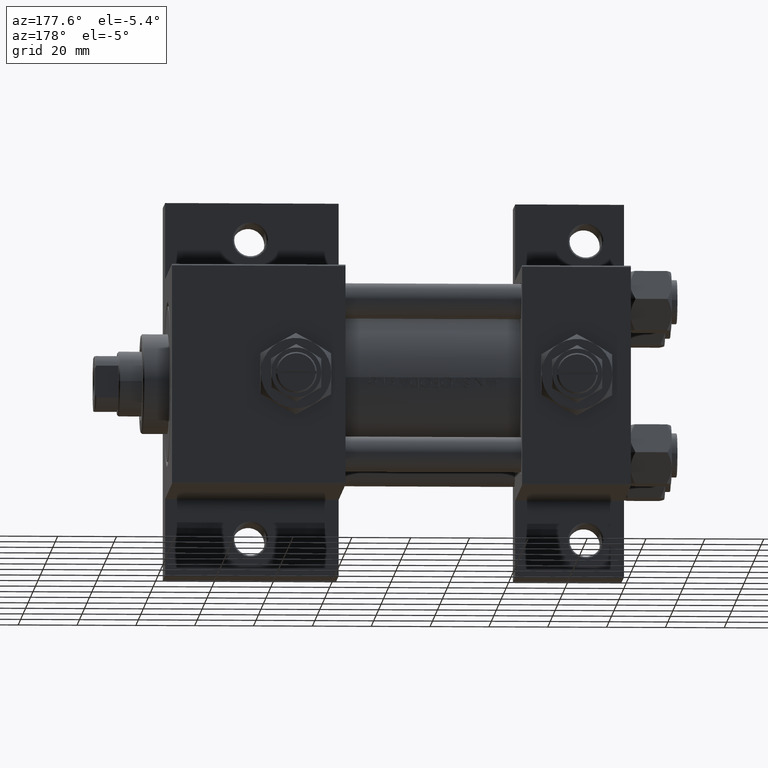
[diagram: clean part render]
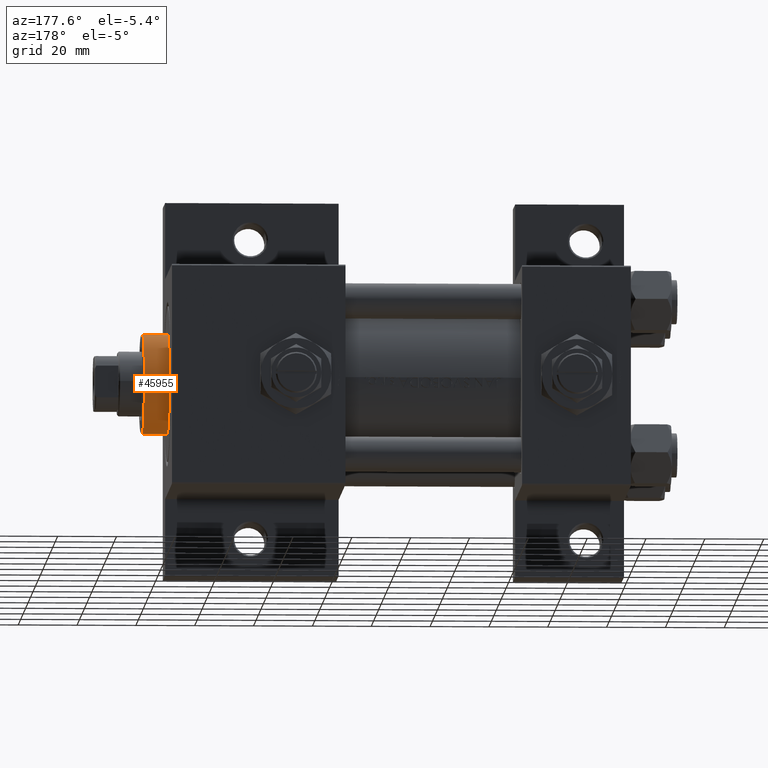
[diagram: same view with one face highlighted and labeled with its STEP entity id]
A machine part, auxiliary view. The second image highlights one B-rep face of the part: STEP entity #45955.
In plain terms, the highlighted cylindrical surface (partial cylindrical patch) has radius 17 mm, axis along (-1, -0, 0).
Its self-contained STEP definition (entity closure, byte-faithful):
#372 = CARTESIAN_POINT ( 'NONE',  ( -17.00000000000000000, 0.000000000000000000, 37.69999999999999574 ) ) ;
#807 = AXIS2_PLACEMENT_3D ( 'NONE', #36709, #43412, #20849 ) ;
#1851 = CARTESIAN_POINT ( 'NONE',  ( 17.00000000000000000, 2.081899558550500280E-15, 28.69999999999999929 ) ) ;
#2935 = VERTEX_POINT ( 'NONE', #26538 ) ;
#5365 = CYLINDRICAL_SURFACE ( 'NONE', #6507, 17.00000000000000000 ) ;
#6507 = AXIS2_PLACEMENT_3D ( 'NONE', #20958, #36089, #32364 ) ;
#7432 = EDGE_CURVE ( 'NONE', #2935, #21690, #22161, .T. ) ;
#8493 = AXIS2_PLACEMENT_3D ( 'NONE', #36771, #40962, #44206 ) ;
#14014 = FACE_OUTER_BOUND ( 'NONE', #33560, .T. ) ;
#18715 = DIRECTION ( 'NONE',  ( -0.000000000000000000, -0.000000000000000000, -1.000000000000000000 ) ) ;
#19251 = CARTESIAN_POINT ( 'NONE',  ( 17.00000000000000000, 2.081899558550500280E-15, 37.19999999999999574 ) ) ;
#19755 = VECTOR ( 'NONE', #18715, 1000.000000000000000 ) ;
#20849 = DIRECTION ( 'NONE',  ( 1.000000000000000000, 0.000000000000000000, 0.000000000000000000 ) ) ;
#20958 = CARTESIAN_POINT ( 'NONE',  ( 0.000000000000000000, 0.000000000000000000, 37.69999999999999574 ) ) ;
#21203 = CARTESIAN_POINT ( 'NONE',  ( -17.00000000000000000, 0.000000000000000000, 28.69999999999999929 ) ) ;
#21690 = VERTEX_POINT ( 'NONE', #19251 ) ;
#22161 = CIRCLE ( 'NONE', #807, 17.00000000000000000 ) ;
#22824 = VERTEX_POINT ( 'NONE', #1851 ) ;
#26061 = VECTOR ( 'NONE', #46453, 1000.000000000000000 ) ;
#26538 = CARTESIAN_POINT ( 'NONE',  ( -17.00000000000000000, 0.000000000000000000, 37.19999999999999574 ) ) ;
#29582 = ORIENTED_EDGE ( 'NONE', *, *, #7432, .T. ) ;
#30469 = EDGE_CURVE ( 'NONE', #22824, #35166, #39338, .T. ) ;
#31619 = ORIENTED_EDGE ( 'NONE', *, *, #35332, .F. ) ;
#32364 = DIRECTION ( 'NONE',  ( -1.000000000000000000, 0.000000000000000000, 0.000000000000000000 ) ) ;
#33560 = EDGE_LOOP ( 'NONE', ( #29582, #38121, #48618, #31619 ) ) ;
#34804 = LINE ( 'NONE', #372, #26061 ) ;
#35166 = VERTEX_POINT ( 'NONE', #21203 ) ;
#35332 = EDGE_CURVE ( 'NONE', #2935, #35166, #34804, .T. ) ;
#36089 = DIRECTION ( 'NONE',  ( -0.000000000000000000, -0.000000000000000000, -1.000000000000000000 ) ) ;
#36358 = EDGE_CURVE ( 'NONE', #21690, #22824, #40790, .T. ) ;
#36709 = CARTESIAN_POINT ( 'NONE',  ( 0.000000000000000000, 0.000000000000000000, 37.19999999999999574 ) ) ;
#36771 = CARTESIAN_POINT ( 'NONE',  ( 0.000000000000000000, 0.000000000000000000, 28.69999999999999929 ) ) ;
#38121 = ORIENTED_EDGE ( 'NONE', *, *, #36358, .T. ) ;
#39338 = CIRCLE ( 'NONE', #8493, 17.00000000000000000 ) ;
#40790 = LINE ( 'NONE', #44992, #19755 ) ;
#40962 = DIRECTION ( 'NONE',  ( 0.000000000000000000, 0.000000000000000000, 1.000000000000000000 ) ) ;
#43412 = DIRECTION ( 'NONE',  ( 0.000000000000000000, 0.000000000000000000, -1.000000000000000000 ) ) ;
#44206 = DIRECTION ( 'NONE',  ( 1.000000000000000000, 0.000000000000000000, 0.000000000000000000 ) ) ;
#44992 = CARTESIAN_POINT ( 'NONE',  ( 17.00000000000000000, 2.081899558550500280E-15, 37.69999999999999574 ) ) ;
#45955 = ADVANCED_FACE ( 'NONE', ( #14014 ), #5365, .T. ) ;
#46453 = DIRECTION ( 'NONE',  ( -0.000000000000000000, -0.000000000000000000, -1.000000000000000000 ) ) ;
#48618 = ORIENTED_EDGE ( 'NONE', *, *, #30469, .T. ) ;